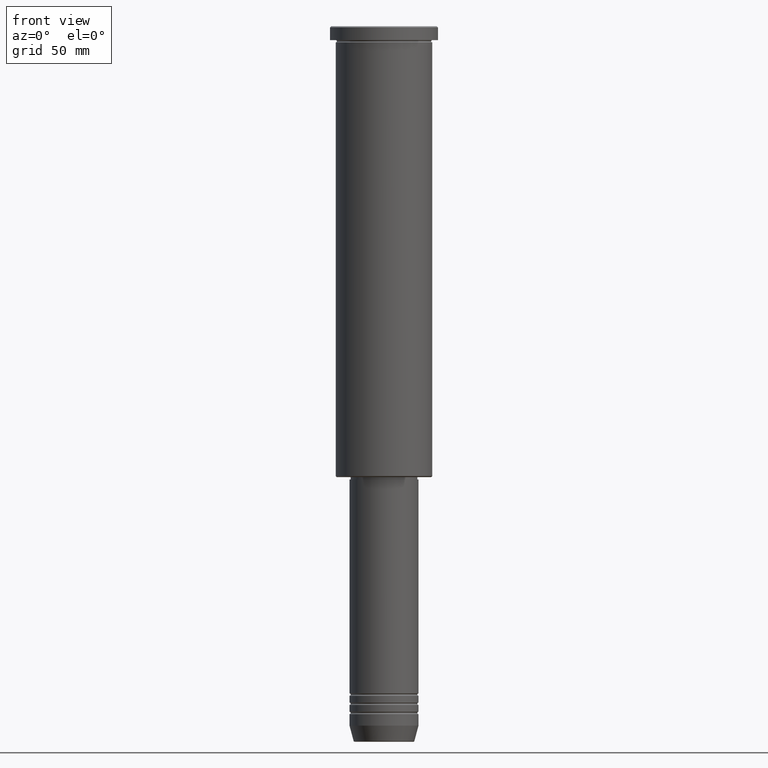
[diagram: clean part render]
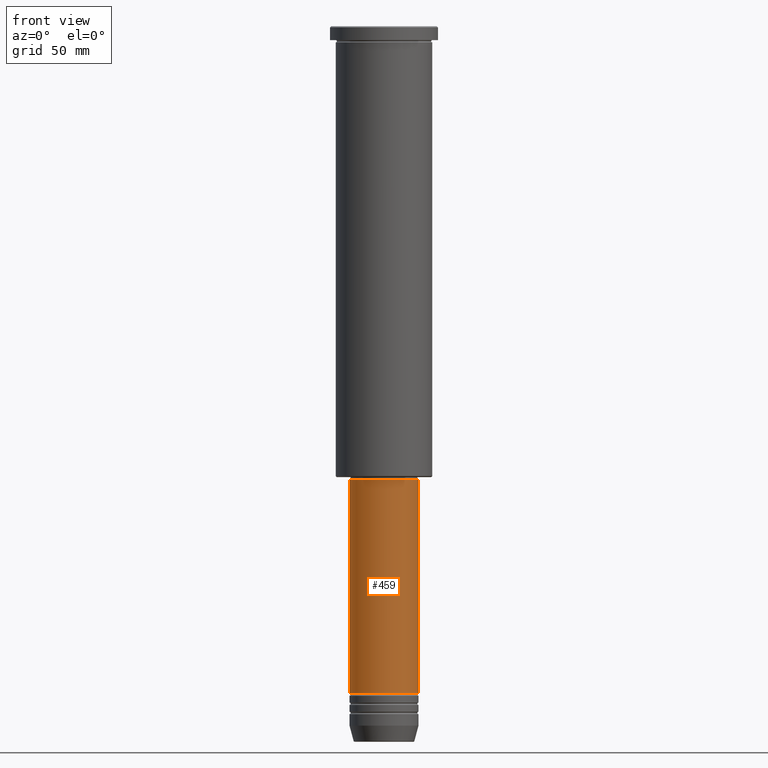
[diagram: same view with one face highlighted and labeled with its STEP entity id]
A machine part, front view. The second image highlights one B-rep face of the part: STEP entity #459.
In plain terms, the highlighted cylindrical surface (edge-blend (fillet) strip) has radius 15 mm, axis along (-0, -0, 1).
Its self-contained STEP definition (entity closure, byte-faithful):
#15 = CARTESIAN_POINT ( 'NONE',  ( 15.00000000000000000, 0.000000000000000000, -289.9999999999999432 ) ) ;
#114 = CARTESIAN_POINT ( 'NONE',  ( 0.000000000000000000, 0.000000000000000000, -196.9999999999998863 ) ) ;
#129 = CARTESIAN_POINT ( 'NONE',  ( -15.00000000000000000, 1.836970198721029589E-15, -196.9999999999998863 ) ) ;
#136 = DIRECTION ( 'NONE',  ( 1.000000000000000000, 0.000000000000000000, 0.000000000000000000 ) ) ;
#146 = EDGE_CURVE ( 'NONE', #1009, #170, #520, .T. ) ;
#149 = CARTESIAN_POINT ( 'NONE',  ( 0.000000000000000000, 0.000000000000000000, 0.000000000000000000 ) ) ;
#159 = CARTESIAN_POINT ( 'NONE',  ( 15.00000000000000000, 0.000000000000000000, 0.000000000000000000 ) ) ;
#164 = VECTOR ( 'NONE', #622, 1000.000000000000000 ) ;
#170 = VERTEX_POINT ( 'NONE', #631 ) ;
#192 = CIRCLE ( 'NONE', #872, 15.00000000000000000 ) ;
#221 = CYLINDRICAL_SURFACE ( 'NONE', #776, 15.00000000000000000 ) ;
#250 = VERTEX_POINT ( 'NONE', #996 ) ;
#358 = DIRECTION ( 'NONE',  ( -0.000000000000000000, -0.000000000000000000, 1.000000000000000000 ) ) ;
#446 = LINE ( 'NONE', #814, #665 ) ;
#459 = ADVANCED_FACE ( 'NONE', ( #710 ), #221, .T. ) ;
#484 = DIRECTION ( 'NONE',  ( 1.000000000000000000, 0.000000000000000000, 0.000000000000000000 ) ) ;
#515 = ORIENTED_EDGE ( 'NONE', *, *, #653, .F. ) ;
#520 = LINE ( 'NONE', #159, #164 ) ;
#567 = ORIENTED_EDGE ( 'NONE', *, *, #1020, .T. ) ;
#601 = DIRECTION ( 'NONE',  ( -0.000000000000000000, -0.000000000000000000, 1.000000000000000000 ) ) ;
#622 = DIRECTION ( 'NONE',  ( -0.000000000000000000, -0.000000000000000000, 1.000000000000000000 ) ) ;
#627 = CIRCLE ( 'NONE', #839, 15.00000000000000000 ) ;
#631 = CARTESIAN_POINT ( 'NONE',  ( 15.00000000000000000, 0.000000000000000000, -196.9999999999998863 ) ) ;
#645 = DIRECTION ( 'NONE',  ( -0.000000000000000000, -0.000000000000000000, 1.000000000000000000 ) ) ;
#653 = EDGE_CURVE ( 'NONE', #796, #170, #192, .T. ) ;
#665 = VECTOR ( 'NONE', #358, 1000.000000000000000 ) ;
#676 = EDGE_LOOP ( 'NONE', ( #922, #567, #912, #515 ) ) ;
#710 = FACE_OUTER_BOUND ( 'NONE', #676, .T. ) ;
#750 = CARTESIAN_POINT ( 'NONE',  ( 0.000000000000000000, 0.000000000000000000, -289.9999999999999432 ) ) ;
#776 = AXIS2_PLACEMENT_3D ( 'NONE', #149, #601, #136 ) ;
#796 = VERTEX_POINT ( 'NONE', #129 ) ;
#814 = CARTESIAN_POINT ( 'NONE',  ( -15.00000000000000000, 1.836970198721029589E-15, 0.000000000000000000 ) ) ;
#839 = AXIS2_PLACEMENT_3D ( 'NONE', #750, #645, #1114 ) ;
#872 = AXIS2_PLACEMENT_3D ( 'NONE', #114, #930, #484 ) ;
#912 = ORIENTED_EDGE ( 'NONE', *, *, #146, .T. ) ;
#921 = EDGE_CURVE ( 'NONE', #250, #796, #446, .T. ) ;
#922 = ORIENTED_EDGE ( 'NONE', *, *, #921, .F. ) ;
#930 = DIRECTION ( 'NONE',  ( -0.000000000000000000, -0.000000000000000000, 1.000000000000000000 ) ) ;
#996 = CARTESIAN_POINT ( 'NONE',  ( -15.00000000000000000, 1.836970198721029589E-15, -289.9999999999999432 ) ) ;
#1009 = VERTEX_POINT ( 'NONE', #15 ) ;
#1020 = EDGE_CURVE ( 'NONE', #250, #1009, #627, .T. ) ;
#1114 = DIRECTION ( 'NONE',  ( 1.000000000000000000, 0.000000000000000000, 0.000000000000000000 ) ) ;